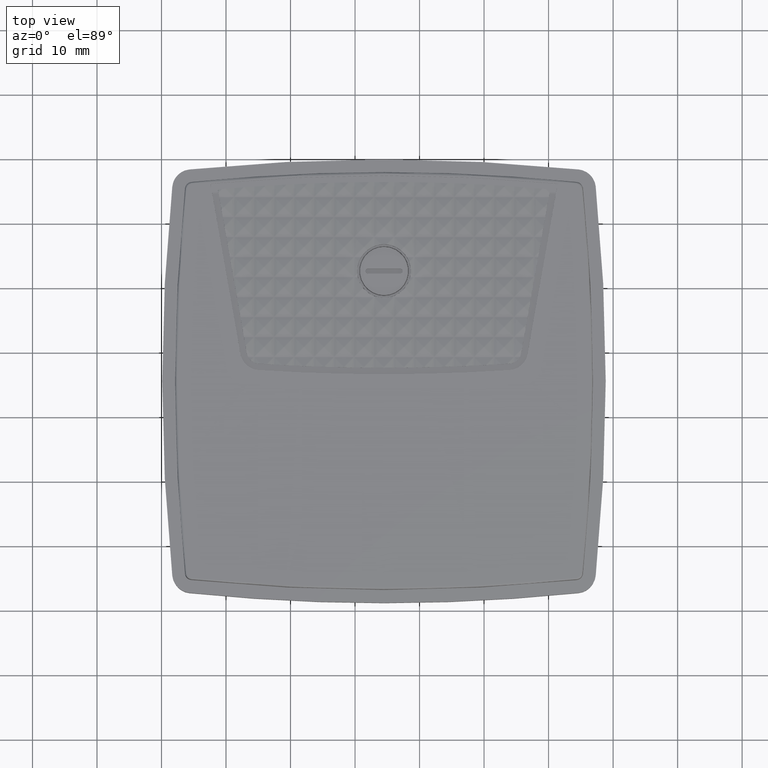
[diagram: clean part render]
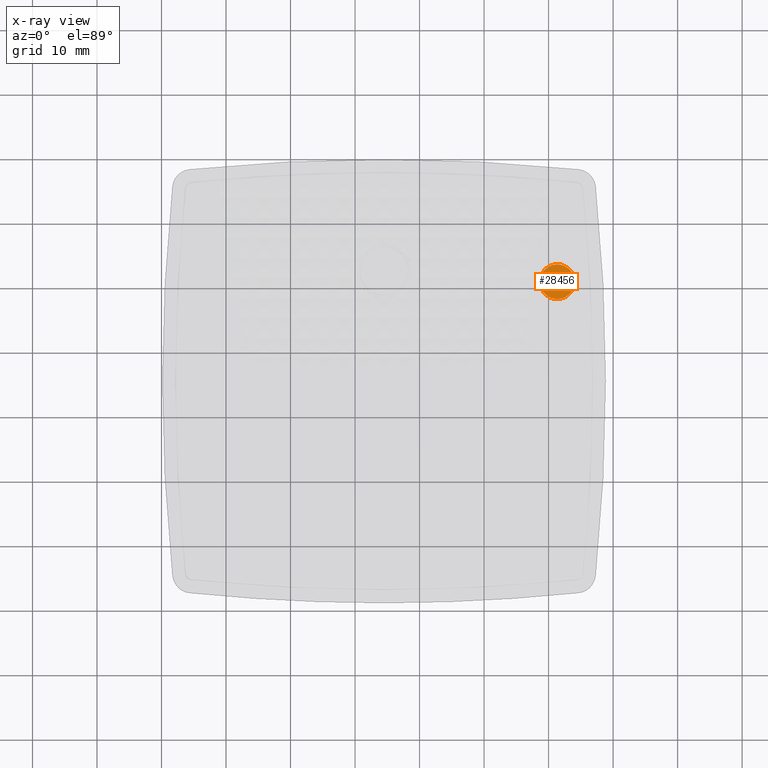
[diagram: x-ray — body ghosted, one internal face saturated and labeled with its STEP entity id]
A machine part, top view, then the same camera in x-ray: the body is ghosted and one INTERNAL B-rep face — a face not visible from any outside direction — is saturated and labeled: STEP entity #28456.
In plain terms, the highlighted planar face has unit normal (0, 0, 1).
Its self-contained STEP definition (entity closure, byte-faithful):
#6336 = AXIS2_PLACEMENT_3D ( 'NONE', #25642, #25422, #29565 ) ;
#6979 = AXIS2_PLACEMENT_3D ( 'NONE', #40264, #47392, #48330 ) ;
#20091 = EDGE_LOOP ( 'NONE', ( #39652, #29972 ) ) ;
#21780 = VERTEX_POINT ( 'NONE', #44482 ) ;
#22302 = CIRCLE ( 'NONE', #36367, 0.1062992125984380115 ) ;
#25017 = VERTEX_POINT ( 'NONE', #41001 ) ;
#25213 = DIRECTION ( 'NONE',  ( 0.000000000000000000, 1.000000000000000000, 0.000000000000000000 ) ) ;
#25422 = DIRECTION ( 'NONE',  ( 0.000000000000000000, 0.000000000000000000, -1.000000000000000000 ) ) ;
#25642 = CARTESIAN_POINT ( 'NONE',  ( 1.627388776049354391, 0.4012325347210511373, 0.07086574803129842837 ) ) ;
#28456 = ADVANCED_FACE ( 'NONE', ( #40743 ), #47860, .F. ) ;
#29565 = DIRECTION ( 'NONE',  ( 0.000000000000000000, 1.000000000000000000, 0.000000000000000000 ) ) ;
#29972 = ORIENTED_EDGE ( 'NONE', *, *, #30309, .T. ) ;
#30309 = EDGE_CURVE ( 'NONE', #21780, #25017, #43215, .T. ) ;
#36256 = DIRECTION ( 'NONE',  ( 0.000000000000000000, 0.000000000000000000, -1.000000000000000000 ) ) ;
#36367 = AXIS2_PLACEMENT_3D ( 'NONE', #47314, #36256, #25213 ) ;
#39652 = ORIENTED_EDGE ( 'NONE', *, *, #48490, .T. ) ;
#40264 = CARTESIAN_POINT ( 'NONE',  ( 1.627388776049354391, 0.4012325347210511373, 0.07086574803150354207 ) ) ;
#40743 = FACE_OUTER_BOUND ( 'NONE', #20091, .T. ) ;
#41001 = CARTESIAN_POINT ( 'NONE',  ( 1.627388776049354391, 0.5075317473194891349, 0.07086574803129842837 ) ) ;
#43215 = CIRCLE ( 'NONE', #6336, 0.1062992125984380115 ) ;
#44482 = CARTESIAN_POINT ( 'NONE',  ( 1.627388776049354391, 0.2949333221226131396, 0.07086574803129842837 ) ) ;
#47314 = CARTESIAN_POINT ( 'NONE',  ( 1.627388776049354391, 0.4012325347210511373, 0.07086574803129842837 ) ) ;
#47392 = DIRECTION ( 'NONE',  ( 0.000000000000000000, 0.000000000000000000, 1.000000000000000000 ) ) ;
#47860 = PLANE ( 'NONE',  #6979 ) ;
#48330 = DIRECTION ( 'NONE',  ( 0.000000000000000000, -1.000000000000000000, 0.000000000000000000 ) ) ;
#48490 = EDGE_CURVE ( 'NONE', #25017, #21780, #22302, .T. ) ;